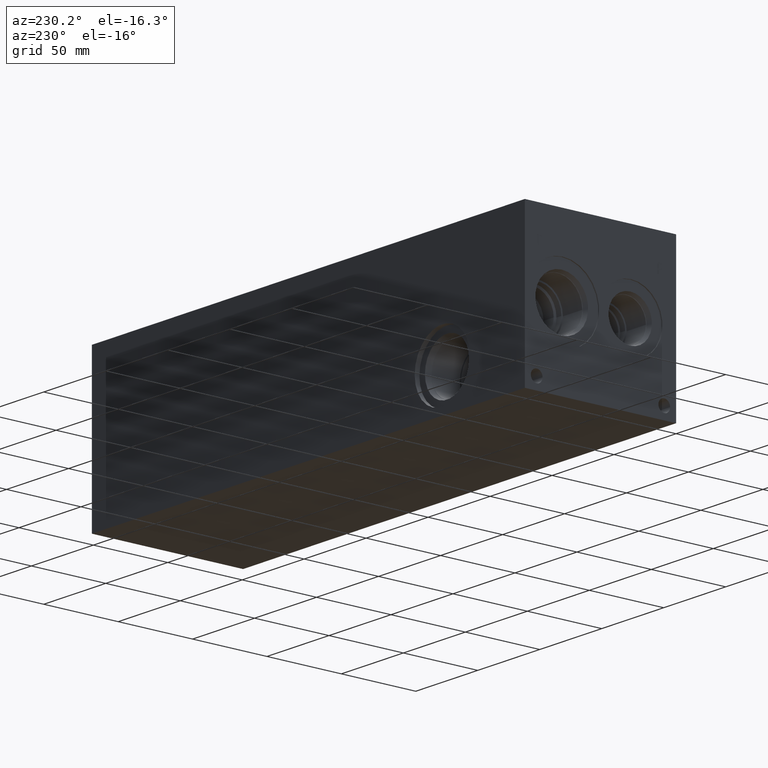
[diagram: clean part render]
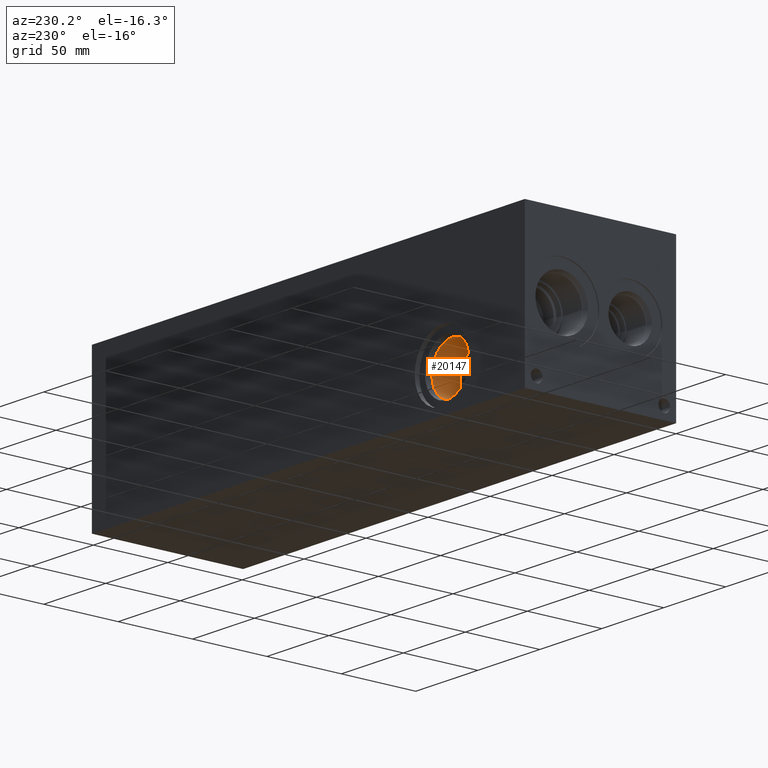
[diagram: same view with one face highlighted and labeled with its STEP entity id]
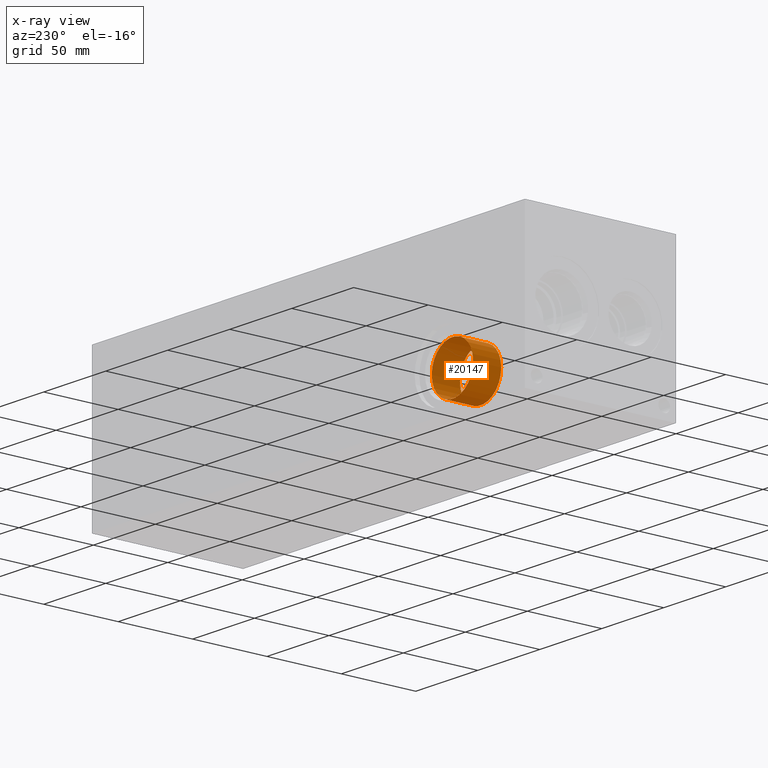
[diagram: x-ray of the same camera — body ghosted, the highlighted face saturated]
A machine part, auxiliary view. The second image highlights one B-rep face of the part: STEP entity #20147.
The next image is the same camera in x-ray: the body ghosted, the highlighted face saturated — about 0% of this face is hidden behind the body in this view.
In plain terms, the highlighted cylindrical surface (bore or boss wall) has radius 16.67 mm, axis along (0, -1, 0).
Its self-contained STEP definition (entity closure, byte-faithful):
#155=CYLINDRICAL_SURFACE('',#21047,16.67);
#632=CIRCLE('',#21045,16.67);
#633=CIRCLE('',#21046,16.67);
#634=CIRCLE('',#21048,16.67);
#635=CIRCLE('',#21049,16.67);
#2649=FACE_OUTER_BOUND('',#3814,.T.);
#3814=EDGE_LOOP('',(#16312,#16313,#16314,#16315,#16316,#16317));
#5690=LINE('',#33851,#7381);
#7381=VECTOR('',#24439,16.67);
#8990=VERTEX_POINT('',#33844);
#8991=VERTEX_POINT('',#33846);
#8992=VERTEX_POINT('',#33850);
#8993=VERTEX_POINT('',#33852);
#11610=EDGE_CURVE('',#8990,#8991,#632,.T.);
#11611=EDGE_CURVE('',#8991,#8990,#633,.T.);
#11612=EDGE_CURVE('',#8990,#8992,#5690,.T.);
#11613=EDGE_CURVE('',#8992,#8993,#634,.T.);
#11614=EDGE_CURVE('',#8993,#8992,#635,.T.);
#16312=ORIENTED_EDGE('',*,*,#11611,.F.);
#16313=ORIENTED_EDGE('',*,*,#11610,.F.);
#16314=ORIENTED_EDGE('',*,*,#11612,.T.);
#16315=ORIENTED_EDGE('',*,*,#11613,.T.);
#16316=ORIENTED_EDGE('',*,*,#11614,.T.);
#16317=ORIENTED_EDGE('',*,*,#11612,.F.);
#20147=ADVANCED_FACE('',(#2649),#155,.F.);
#21045=AXIS2_PLACEMENT_3D('',#33847,#24433,#24434);
#21046=AXIS2_PLACEMENT_3D('',#33848,#24435,#24436);
#21047=AXIS2_PLACEMENT_3D('',#33849,#24437,#24438);
#21048=AXIS2_PLACEMENT_3D('',#33853,#24440,#24441);
#21049=AXIS2_PLACEMENT_3D('',#33854,#24442,#24443);
#24433=DIRECTION('center_axis',(0.,-1.,0.));
#24434=DIRECTION('ref_axis',(1.,0.,0.));
#24435=DIRECTION('center_axis',(0.,-1.,0.));
#24436=DIRECTION('ref_axis',(1.,0.,0.));
#24437=DIRECTION('center_axis',(0.,-1.,0.));
#24438=DIRECTION('ref_axis',(1.,0.,0.));
#24439=DIRECTION('',(0.,-1.,0.));
#24440=DIRECTION('center_axis',(0.,-1.,0.));
#24441=DIRECTION('ref_axis',(1.,0.,0.));
#24442=DIRECTION('center_axis',(0.,-1.,0.));
#24443=DIRECTION('ref_axis',(1.,0.,0.));
#33844=CARTESIAN_POINT('',(50.005,94.75,26.9748));
#33846=CARTESIAN_POINT('',(83.345,94.75,26.9748));
#33847=CARTESIAN_POINT('Origin',(66.675,94.75,26.9748));
#33848=CARTESIAN_POINT('Origin',(66.675,94.75,26.9748));
#33849=CARTESIAN_POINT('Origin',(66.675,85.2972,26.9748));
#33850=CARTESIAN_POINT('',(50.005,75.8444,26.9748));
#33851=CARTESIAN_POINT('',(50.005,85.2972,26.9748));
#33852=CARTESIAN_POINT('',(83.345,75.8444,26.9748));
#33853=CARTESIAN_POINT('Origin',(66.675,75.8444,26.9748));
#33854=CARTESIAN_POINT('Origin',(66.675,75.8444,26.9748));